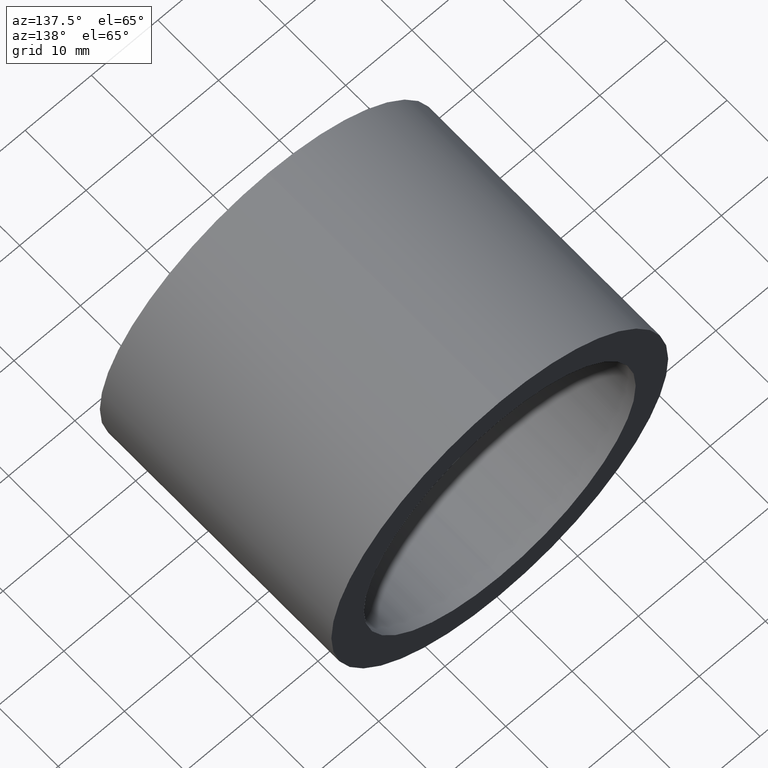
[diagram: clean part render]
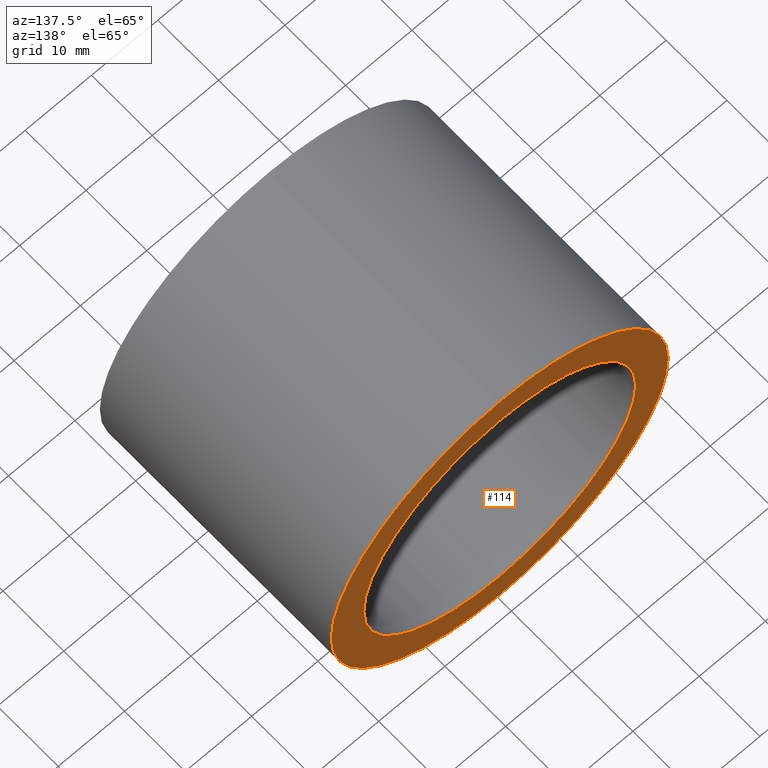
[diagram: same view with one face highlighted and labeled with its STEP entity id]
A machine part, auxiliary view. The second image highlights one B-rep face of the part: STEP entity #114.
In plain terms, the highlighted planar face has unit normal (0, -1, 0).
Its self-contained STEP definition (entity closure, byte-faithful):
#7 = EDGE_CURVE ( 'NONE', #56, #163, #204, .T. ) ;
#20 = DIRECTION ( 'NONE',  ( -0.0000000000000000000, 1.000000000000000000, -0.0000000000000000000 ) ) ;
#29 = VERTEX_POINT ( 'NONE', #164 ) ;
#32 = DIRECTION ( 'NONE',  ( -0.0000000000000000000, 1.000000000000000000, -0.0000000000000000000 ) ) ;
#33 = ORIENTED_EDGE ( 'NONE', *, *, #67, .T. ) ;
#39 = DIRECTION ( 'NONE',  ( 0.0000000000000000000, 0.0000000000000000000, 1.000000000000000000 ) ) ;
#48 = VERTEX_POINT ( 'NONE', #53 ) ;
#53 = CARTESIAN_POINT ( 'NONE',  ( 3.110602869834279600E-015, 38.09999999999999400, -25.40000000000002000 ) ) ;
#56 = VERTEX_POINT ( 'NONE', #167 ) ;
#57 = DIRECTION ( 'NONE',  ( -0.0000000000000000000, 1.000000000000000000, -0.0000000000000000000 ) ) ;
#61 = AXIS2_PLACEMENT_3D ( 'NONE', #205, #57, #39 ) ;
#67 = EDGE_CURVE ( 'NONE', #29, #48, #165, .T. ) ;
#72 = FACE_OUTER_BOUND ( 'NONE', #107, .T. ) ;
#73 = CARTESIAN_POINT ( 'NONE',  ( 0.0000000000000000000, 38.09999999999999400, 0.0000000000000000000 ) ) ;
#80 = PLANE ( 'NONE',  #152 ) ;
#82 = CIRCLE ( 'NONE', #185, 20.50000000000001400 ) ;
#88 = AXIS2_PLACEMENT_3D ( 'NONE', #216, #206, #106 ) ;
#104 = EDGE_LOOP ( 'NONE', ( #225, #202 ) ) ;
#106 = DIRECTION ( 'NONE',  ( 0.0000000000000000000, 0.0000000000000000000, 1.000000000000000000 ) ) ;
#107 = EDGE_LOOP ( 'NONE', ( #33, #120 ) ) ;
#112 = DIRECTION ( 'NONE',  ( 0.0000000000000000000, -1.000000000000000000, 0.0000000000000000000 ) ) ;
#113 = CARTESIAN_POINT ( 'NONE',  ( 0.0000000000000000000, 38.09999999999999400, 0.0000000000000000000 ) ) ;
#114 = ADVANCED_FACE ( 'NONE', ( #181, #72 ), #80, .F. ) ;
#115 = DIRECTION ( 'NONE',  ( 0.0000000000000000000, -0.0000000000000000000, -1.000000000000000000 ) ) ;
#120 = ORIENTED_EDGE ( 'NONE', *, *, #197, .T. ) ;
#140 = EDGE_CURVE ( 'NONE', #163, #56, #82, .T. ) ;
#152 = AXIS2_PLACEMENT_3D ( 'NONE', #208, #112, #115 ) ;
#160 = CIRCLE ( 'NONE', #61, 25.40000000000002000 ) ;
#163 = VERTEX_POINT ( 'NONE', #190 ) ;
#164 = CARTESIAN_POINT ( 'NONE',  ( 0.0000000000000000000, 38.09999999999999400, 25.40000000000002000 ) ) ;
#165 = CIRCLE ( 'NONE', #88, 25.40000000000002000 ) ;
#167 = CARTESIAN_POINT ( 'NONE',  ( 0.0000000000000000000, 38.09999999999999400, 20.50000000000001400 ) ) ;
#173 = DIRECTION ( 'NONE',  ( 0.0000000000000000000, 0.0000000000000000000, 1.000000000000000000 ) ) ;
#181 = FACE_BOUND ( 'NONE', #104, .T. ) ;
#185 = AXIS2_PLACEMENT_3D ( 'NONE', #113, #20, #173 ) ;
#189 = AXIS2_PLACEMENT_3D ( 'NONE', #73, #32, #218 ) ;
#190 = CARTESIAN_POINT ( 'NONE',  ( 2.510525938252075700E-015, 38.09999999999999400, -20.50000000000001400 ) ) ;
#197 = EDGE_CURVE ( 'NONE', #48, #29, #160, .T. ) ;
#202 = ORIENTED_EDGE ( 'NONE', *, *, #140, .F. ) ;
#204 = CIRCLE ( 'NONE', #189, 20.50000000000001400 ) ;
#205 = CARTESIAN_POINT ( 'NONE',  ( 0.0000000000000000000, 38.09999999999999400, 0.0000000000000000000 ) ) ;
#206 = DIRECTION ( 'NONE',  ( -0.0000000000000000000, 1.000000000000000000, -0.0000000000000000000 ) ) ;
#208 = CARTESIAN_POINT ( 'NONE',  ( 20.50000000000001400, 38.09999999999998700, 0.0000000000000000000 ) ) ;
#216 = CARTESIAN_POINT ( 'NONE',  ( 0.0000000000000000000, 38.09999999999999400, 0.0000000000000000000 ) ) ;
#218 = DIRECTION ( 'NONE',  ( 0.0000000000000000000, 0.0000000000000000000, 1.000000000000000000 ) ) ;
#225 = ORIENTED_EDGE ( 'NONE', *, *, #7, .F. ) ;